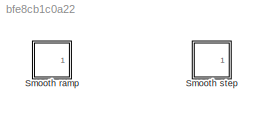
MODEL slx_bfe8cb1c0a22
KIND library
CONFIG AbsTol = auto
CONFIG EnableMultiTasking = off
CONFIG FixedStep = auto
CONFIG MaxStep = auto
CONFIG MinStep = auto
CONFIG RelTol = 1e-3
CONFIG SampleTimeConstraint = Unconstrained
CONFIG SolverName = VariableStepAuto
CONFIG StartTime = 0.0
CONFIG StopTime = 10.0
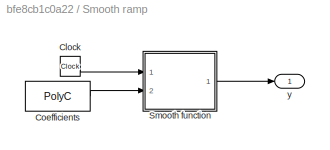
BLOCK [SubSystem] Smooth ramp
  Ports = [0, 1]
  RequestExecContextInheritance = off
BLOCK [Clock] Smooth ramp/Clock
BLOCK [Constant] Smooth ramp/Coefficients
  Value = PolyC
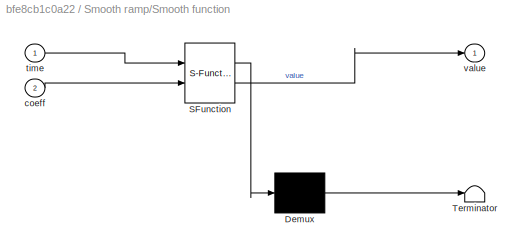
BLOCK [SubSystem] Smooth ramp/Smooth function
  ErrorFcn = Stateflow.Translate.translate
  PermitHierarchicalResolution = ExplicitOnly
  Ports = [2, 1]
  RequestExecContextInheritance = off
  SFBlockType = MATLAB Function
  TreatAsAtomicUnit = on
BLOCK [Demux] Smooth ramp/Smooth function/ Demux 
  Outputs = 1
  Ports = [1, 1]
BLOCK [S-Function] Smooth ramp/Smooth function/ SFunction 
  EnableBusSupport = off
  FunctionName = sf_sfun
  Parameters = Slope,endTime,startTime,startValue
  PortCounts = [2 2]
  Ports = [2, 2]
  SFcnIsStateOwnerBlock = off
  SFunctionDeploymentMode = off
  Tag = Stateflow S-Function 1
BLOCK [Terminator] Smooth ramp/Smooth function/ Terminator 
BLOCK [Inport] Smooth ramp/Smooth function/coeff
  Port = 2
BLOCK [Inport] Smooth ramp/Smooth function/time
BLOCK [Outport] Smooth ramp/Smooth function/value
BLOCK [Outport] Smooth ramp/y
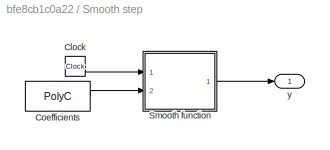
BLOCK [SubSystem] Smooth step
  Ports = [0, 1]
  RequestExecContextInheritance = off
BLOCK [Clock] Smooth step/Clock
BLOCK [Constant] Smooth step/Coefficients
  Value = PolyC
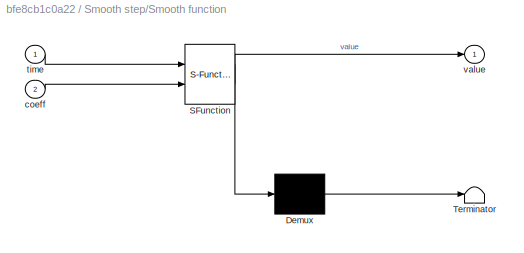
BLOCK [SubSystem] Smooth step/Smooth function
  ErrorFcn = Stateflow.Translate.translate
  PermitHierarchicalResolution = ExplicitOnly
  Ports = [2, 1]
  RequestExecContextInheritance = off
  SFBlockType = MATLAB Function
  TreatAsAtomicUnit = on
BLOCK [Demux] Smooth step/Smooth function/ Demux 
  Outputs = 1
  Ports = [1, 1]
BLOCK [S-Function] Smooth step/Smooth function/ SFunction 
  EnableBusSupport = on
  FunctionName = sf_sfun
  Parameters = endTime,endValue,startTime,startValue
  PortCounts = [2 2]
  Ports = [2, 2]
  SFcnIsStateOwnerBlock = off
  SFunctionDeploymentMode = off
  Tag = Stateflow S-Function 3
BLOCK [Terminator] Smooth step/Smooth function/ Terminator 
BLOCK [Inport] Smooth step/Smooth function/coeff
  Port = 2
BLOCK [Inport] Smooth step/Smooth function/time
BLOCK [Outport] Smooth step/Smooth function/value
BLOCK [Outport] Smooth step/y
LINE Smooth ramp/Clock:1 -> Smooth ramp/Smooth function:1
LINE Smooth ramp/Coefficients:1 -> Smooth ramp/Smooth function:2
LINE Smooth ramp/Smooth function:1 -> Smooth ramp/y:1
LINE Smooth step/Clock:1 -> Smooth step/Smooth function:1
LINE Smooth step/Coefficients:1 -> Smooth step/Smooth function:2
LINE Smooth step/Smooth function:1 -> Smooth step/y:1
CHART Smooth ramp/Smooth function states=1 transitions=1
  STATE_LABEL 'eML_blk_kernel()'
  STATE_LABEL 'SCRIPT:\nfunction value = fcn(time, startTime, endTime, startValue, Slope, coeff)\n    value = startValue + ...\n            Slope .* ...\n            arrayfun(@(t, dt) scalarramp(t, dt, coeff), ...\n                                time-startTime, endTime-startTime );\nend\n\nfunction y = scalarramp(t, dt, a)\n    if t>= dt\n        y = t-dt + dt.*polyval(a, 1);\n    elseif t <= 0\n        y = 0;\n    else\n   ...<+42ch>'
CHART Smooth step/Smooth function states=1 transitions=1
  STATE_LABEL 'eML_blk_kernel()'
  STATE_LABEL 'SCRIPT:\nfunction value = fcn(time, startTime, endTime, startValue, endValue, coeff)\n    value = startValue + ...\n            endValue .* ...\n            arrayfun(@(t, dt) scalarstep(t, dt, coeff), ...\n                                time-startTime, endTime-startTime);\nend\n\nfunction y = scalarstep(t, dt, a)\n    if t>= dt\n        y = 1;\n    elseif t <= 0\n        y = 0;\n    else\n        y =  polyval(...<+22ch>'
CHART  states=0 transitions=0
CHART  states=0 transitions=0
